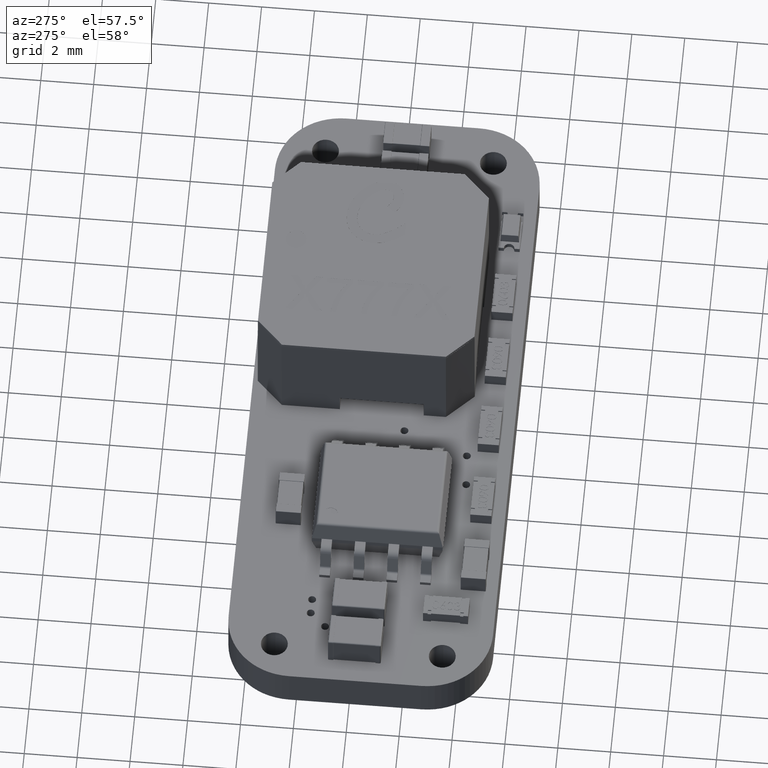
[diagram: clean part render]
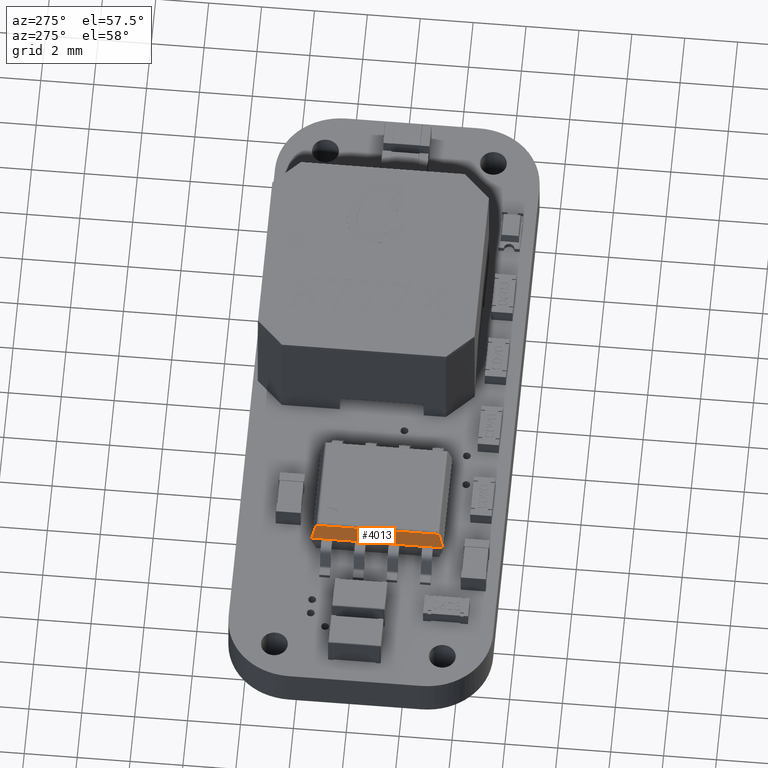
[diagram: same view with one face highlighted and labeled with its STEP entity id]
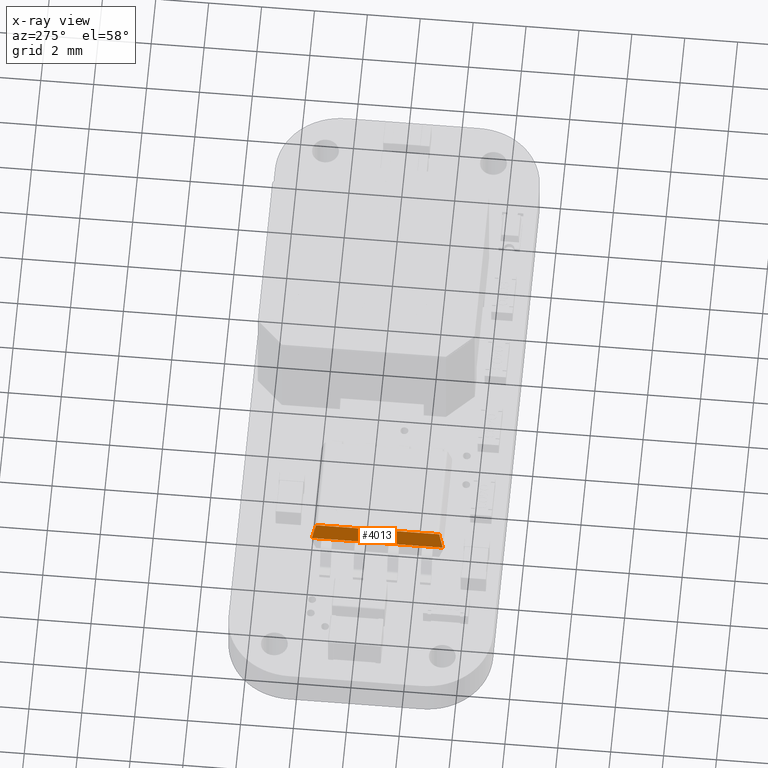
[diagram: x-ray of the same camera — body ghosted, the highlighted face saturated]
A machine part, auxiliary view. The second image highlights one B-rep face of the part: STEP entity #4013.
The next image is the same camera in x-ray: the body ghosted, the highlighted face saturated — about 0% of this face is hidden behind the body in this view.
In plain terms, the highlighted planar face has unit normal (0.9781, 0, -0.2079).
Its self-contained STEP definition (entity closure, byte-faithful):
#3411 = VERTEX_POINT('',#3412);
#3412 = CARTESIAN_POINT('',(-2.,1.115,-2.105));
#3418 = EDGE_CURVE('',#3411,#3419,#3421,.T.);
#3419 = VERTEX_POINT('',#3420);
#3420 = CARTESIAN_POINT('',(-2.,1.115,-2.475));
#3421 = LINE('',#3422,#3423);
#3422 = CARTESIAN_POINT('',(-2.,1.115,2.475));
#3423 = VECTOR('',#3424,1.);
#3424 = DIRECTION('',(-2.628368902995E-16,0.,-1.));
#3448 = EDGE_CURVE('',#3449,#3451,#3453,.T.);
#3449 = VERTEX_POINT('',#3450);
#3450 = CARTESIAN_POINT('',(-2.,1.115,-0.835));
#3451 = VERTEX_POINT('',#3452);
#3452 = CARTESIAN_POINT('',(-2.,1.115,-1.705));
#3453 = LINE('',#3454,#3455);
#3454 = CARTESIAN_POINT('',(-2.,1.115,2.475));
#3455 = VECTOR('',#3456,1.);
#3456 = DIRECTION('',(-2.628368902995E-16,0.,-1.));
#3491 = VERTEX_POINT('',#3492);
#3492 = CARTESIAN_POINT('',(-2.,1.115,1.705));
#3498 = EDGE_CURVE('',#3491,#3499,#3501,.T.);
#3499 = VERTEX_POINT('',#3500);
#3500 = CARTESIAN_POINT('',(-2.,1.115,0.835));
#3501 = LINE('',#3502,#3503);
#3502 = CARTESIAN_POINT('',(-2.,1.115,2.475));
#3503 = VECTOR('',#3504,1.);
#3504 = DIRECTION('',(-2.628368902995E-16,0.,-1.));
#3528 = EDGE_CURVE('',#3529,#3531,#3533,.T.);
#3529 = VERTEX_POINT('',#3530);
#3530 = CARTESIAN_POINT('',(-2.,1.115,2.475));
#3531 = VERTEX_POINT('',#3532);
#3532 = CARTESIAN_POINT('',(-2.,1.115,2.105));
#3533 = LINE('',#3534,#3535);
#3534 = CARTESIAN_POINT('',(-2.,1.115,2.475));
#3535 = VECTOR('',#3536,1.);
#3536 = DIRECTION('',(-2.628368902995E-16,0.,-1.));
#3568 = EDGE_CURVE('',#3569,#3571,#3573,.T.);
#3569 = VERTEX_POINT('',#3570);
#3570 = CARTESIAN_POINT('',(-2.,1.115,0.435));
#3571 = VERTEX_POINT('',#3572);
#3572 = CARTESIAN_POINT('',(-2.,1.115,-0.435));
#3573 = LINE('',#3574,#3575);
#3574 = CARTESIAN_POINT('',(-2.,1.115,2.475));
#3575 = VECTOR('',#3576,1.);
#3576 = DIRECTION('',(-2.628368902995E-16,0.,-1.));
#3943 = VERTEX_POINT('',#3944);
#3944 = CARTESIAN_POINT('',(-1.854230587076,1.800791169082,
    2.329230587076));
#3950 = EDGE_CURVE('',#3529,#3943,#3951,.T.);
#3951 = LINE('',#3952,#3953);
#3952 = CARTESIAN_POINT('',(-1.639023276695,2.81326196128,2.114023276695
    ));
#3953 = VECTOR('',#3954,1.);
#3954 = DIRECTION('',(0.203558594953,0.957667894858,-0.203558594953));
#4013 = ADVANCED_FACE('',(#4014),#4060,.F.);
#4014 = FACE_BOUND('',#4015,.T.);
#4015 = EDGE_LOOP('',(#4016,#4017,#4025,#4031,#4032,#4038,#4039,#4045,
    #4046,#4052,#4053,#4059));
#4016 = ORIENTED_EDGE('',*,*,#3950,.T.);
#4017 = ORIENTED_EDGE('',*,*,#4018,.T.);
#4018 = EDGE_CURVE('',#3943,#4019,#4021,.T.);
#4019 = VERTEX_POINT('',#4020);
#4020 = CARTESIAN_POINT('',(-1.854230587076,1.800791169082,
    -2.329230587076));
#4021 = LINE('',#4022,#4023);
#4022 = CARTESIAN_POINT('',(-1.854230587076,1.800791169082,
    -2.312394230322));
#4023 = VECTOR('',#4024,1.);
#4024 = DIRECTION('',(-2.628368902995E-16,1.413442460148E-33,-1.));
#4025 = ORIENTED_EDGE('',*,*,#4026,.F.);
#4026 = EDGE_CURVE('',#3419,#4019,#4027,.T.);
#4027 = LINE('',#4028,#4029);
#4028 = CARTESIAN_POINT('',(-1.844131979512,1.848301382292,
    -2.319131979512));
#4029 = VECTOR('',#4030,1.);
#4030 = DIRECTION('',(0.203558594953,0.957667894858,0.203558594953));
#4031 = ORIENTED_EDGE('',*,*,#3418,.F.);
#4032 = ORIENTED_EDGE('',*,*,#4033,.T.);
#4033 = EDGE_CURVE('',#3411,#3451,#4034,.T.);
#4034 = LINE('',#4035,#4036);
#4035 = CARTESIAN_POINT('',(-2.,1.115,-2.105));
#4036 = VECTOR('',#4037,1.);
#4037 = DIRECTION('',(0.,0.,1.));
#4038 = ORIENTED_EDGE('',*,*,#3448,.F.);
#4039 = ORIENTED_EDGE('',*,*,#4040,.T.);
#4040 = EDGE_CURVE('',#3449,#3571,#4041,.T.);
#4041 = LINE('',#4042,#4043);
#4042 = CARTESIAN_POINT('',(-2.,1.115,-0.835));
#4043 = VECTOR('',#4044,1.);
#4044 = DIRECTION('',(0.,0.,1.));
#4045 = ORIENTED_EDGE('',*,*,#3568,.F.);
#4046 = ORIENTED_EDGE('',*,*,#4047,.T.);
#4047 = EDGE_CURVE('',#3569,#3499,#4048,.T.);
#4048 = LINE('',#4049,#4050);
#4049 = CARTESIAN_POINT('',(-2.,1.115,0.435));
#4050 = VECTOR('',#4051,1.);
#4051 = DIRECTION('',(0.,0.,1.));
#4052 = ORIENTED_EDGE('',*,*,#3498,.F.);
#4053 = ORIENTED_EDGE('',*,*,#4054,.T.);
#4054 = EDGE_CURVE('',#3491,#3531,#4055,.T.);
#4055 = LINE('',#4056,#4057);
#4056 = CARTESIAN_POINT('',(-2.,1.115,1.705));
#4057 = VECTOR('',#4058,1.);
#4058 = DIRECTION('',(0.,0.,1.));
#4059 = ORIENTED_EDGE('',*,*,#3528,.F.);
#4060 = PLANE('',#4061);
#4061 = AXIS2_PLACEMENT_3D('',#4062,#4063,#4064);
#4062 = CARTESIAN_POINT('',(-1.837394230322,1.88,-2.475));
#4063 = DIRECTION('',(0.978147600734,-0.207911690818,-2.570932736308E-16
    ));
#4064 = DIRECTION('',(0.207911690818,0.978147600734,1.232595164408E-32)
  );